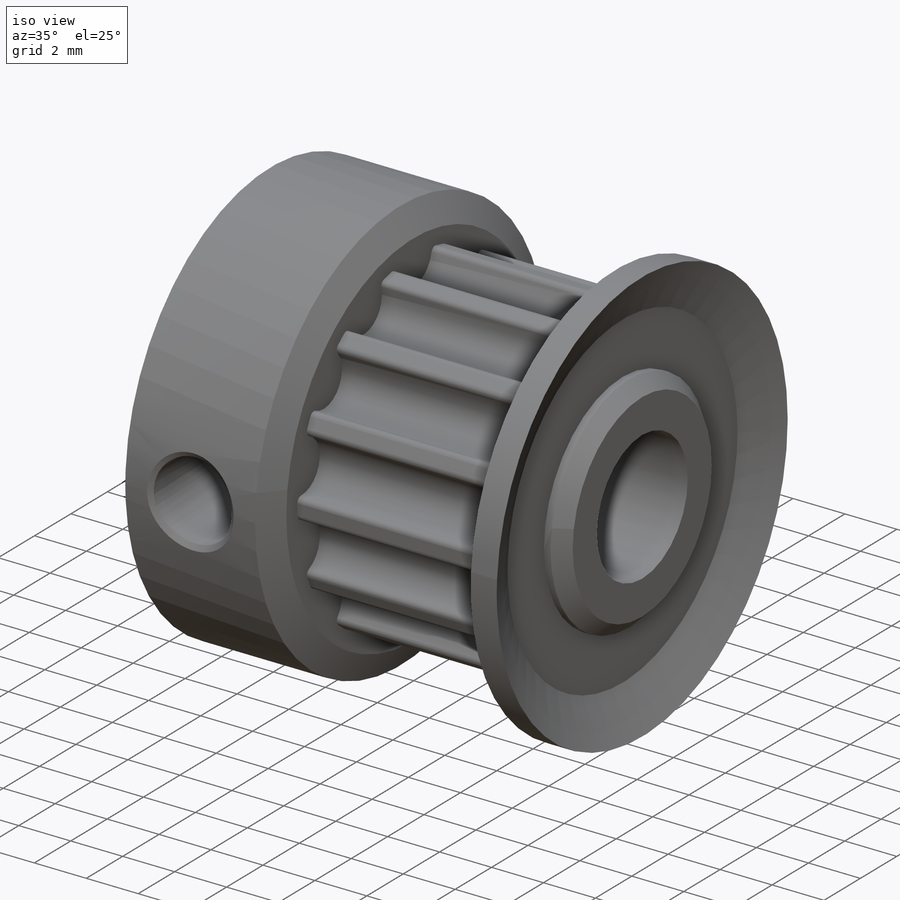
[diagram: iso view]
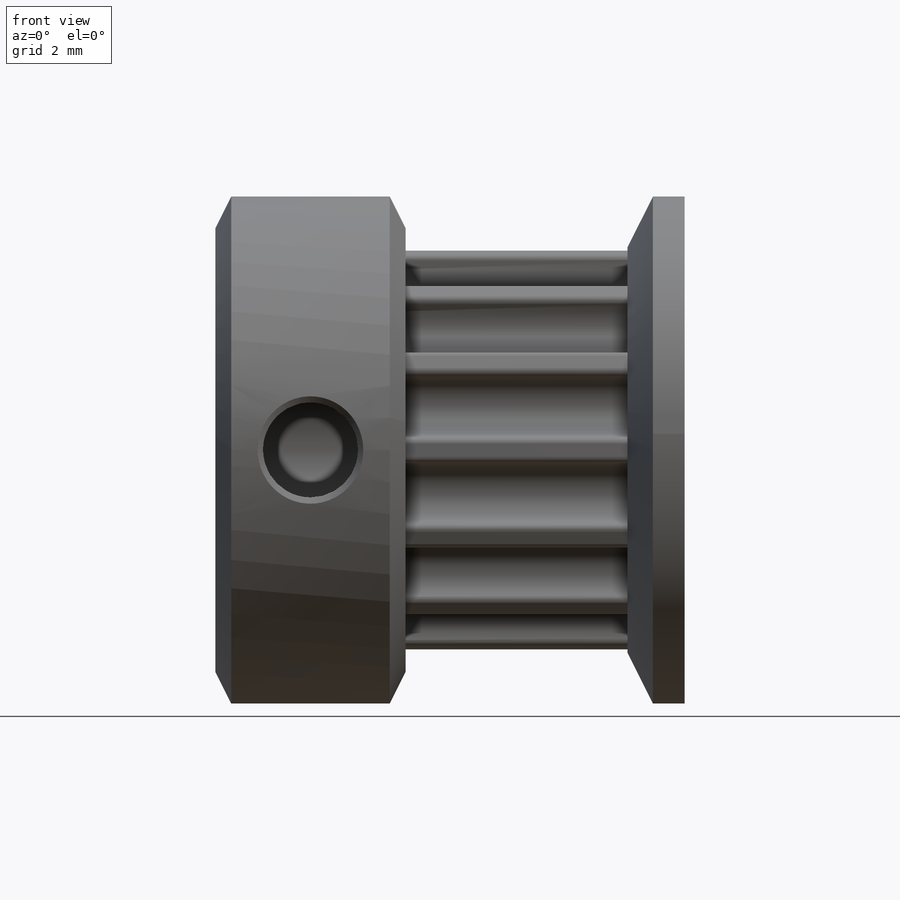
[diagram: front view]
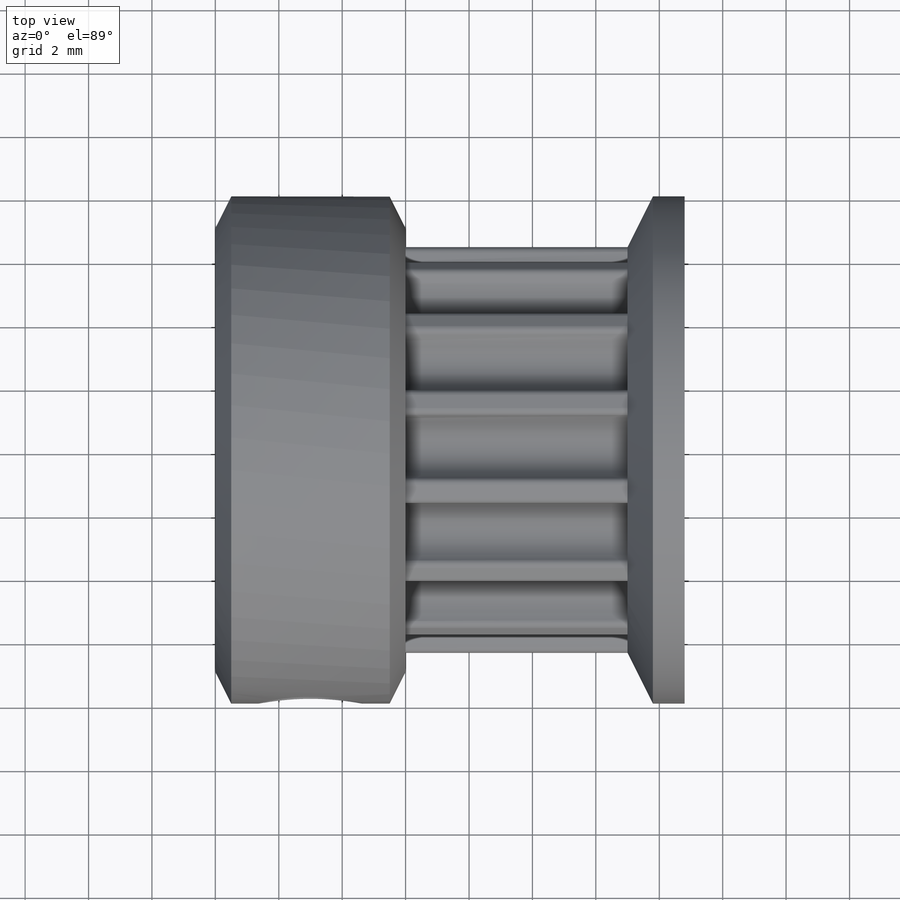
[diagram: top view]
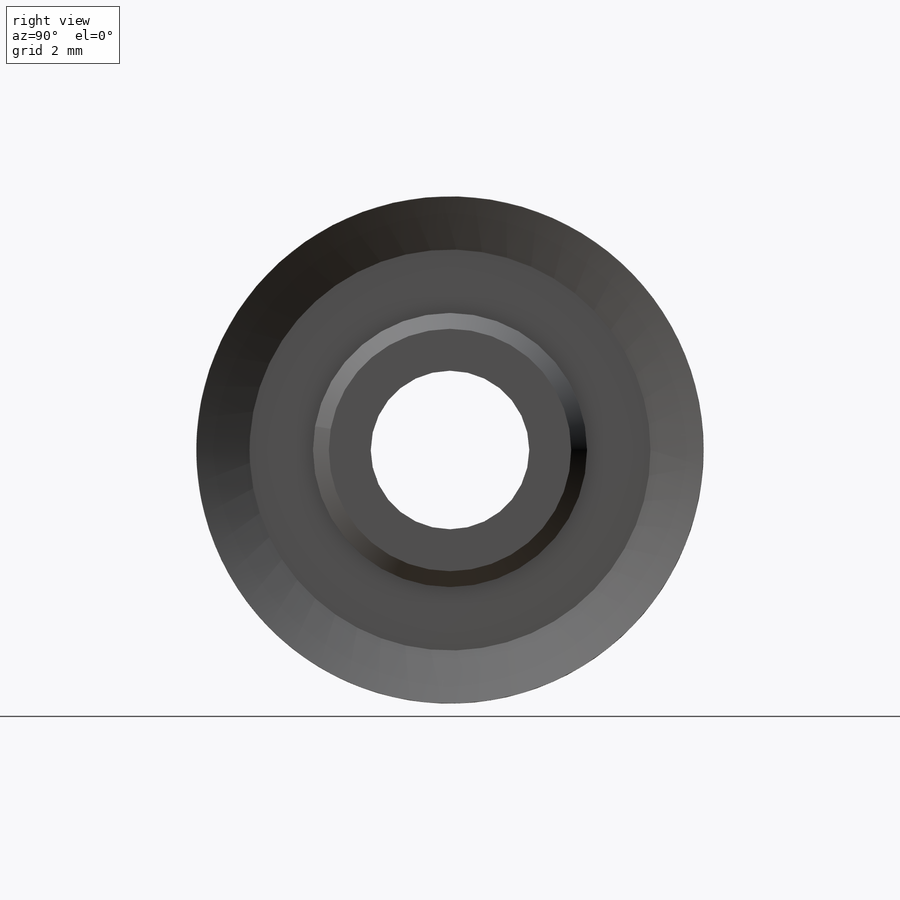
[diagram: right view]
SOLIDWORKS PART (.sldprt)
format: sldprt  version: not decoded by parser v0  size: 493,056 bytes
history: native  units: mm
features: sketch x5, plane x3, cut_extrude x3, material x1, revolve x1, fillet x1, chamfer x1 (+9 scaffold rows collapsed)
feature tree (24):
  scaffold x9  (default folders/planes/origin — collapsed)
  material  "6061-O (SS)"
  plane  "Alzado"
  plane  "Planta"
  plane  "Vista lateral"
  sketch  "Croquis1"  dims[c1.D22=0.1mm c1.D1=7.0mm c1.D2=5.0mm c1.D3=8.0mm c1.D4=0.5mm c1.D5=0.5mm c1.D6=1.0mm c1.D7=0.65mm c1.D8=7.0mm c1.D9=8.0mm c1.D10=14.8mm c1.D11=8.0mm c1.D12=1.0mm c1.D13=1.0mm c1.D14=~1.019239mm c2.D13=2.0mm c2.D14=~4.350472mm c3.D14=14.8mm c3.D15=1.84mm c3.D17=~0.256133mm c3.D7=6.0mm c3.D8=7.0mm c3.D18=3.5mm c3.D19=~3.501218mm c4.D18=3.5mm c4.D19=0.3mm c4.D20=3.2mm c4.D21=0.3mm c4.D22=~1.390591mm c4.D23=0.1mm]
  revolve  "Revolución1"  Angle=360deg
  sketch  "Croquis2"  dims[D1=5.0mm]
  cut_extrude  "Cortar-Extruir2"  Depth=18mm
  sketch  "Croquis3D4"
  sketch  "Croquis8"  dims[c1.D1=~0.914771mm c1.D2=1.2mm c2.D1=16.0]
  cut_extrude  "Cortar-Extruir8"  Depth=7mm
  fillet  "Redondeo2"  Radius=0.2mm
  sketch  "Croquis9"  dims[D1=3.0mm D2=3.0mm D3=3.0mm]
  cut_extrude  "Cortar-Extruir9"  Depth=14mm
  chamfer  "Chaflán3"  Distance=0.2mm Angle=45deg
decode coverage: 10 of 11 modeling features carry decoded parameters
note: ~ marks probable driven/reference dimensions
note: suppression state not decoded; provenance and decode notes live in map.json
